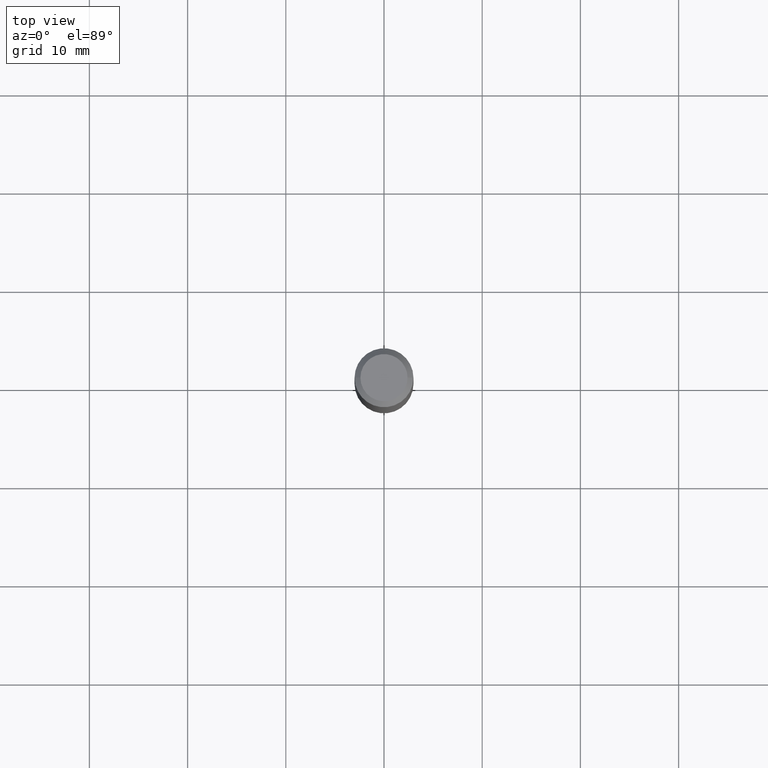
[diagram: clean part render]
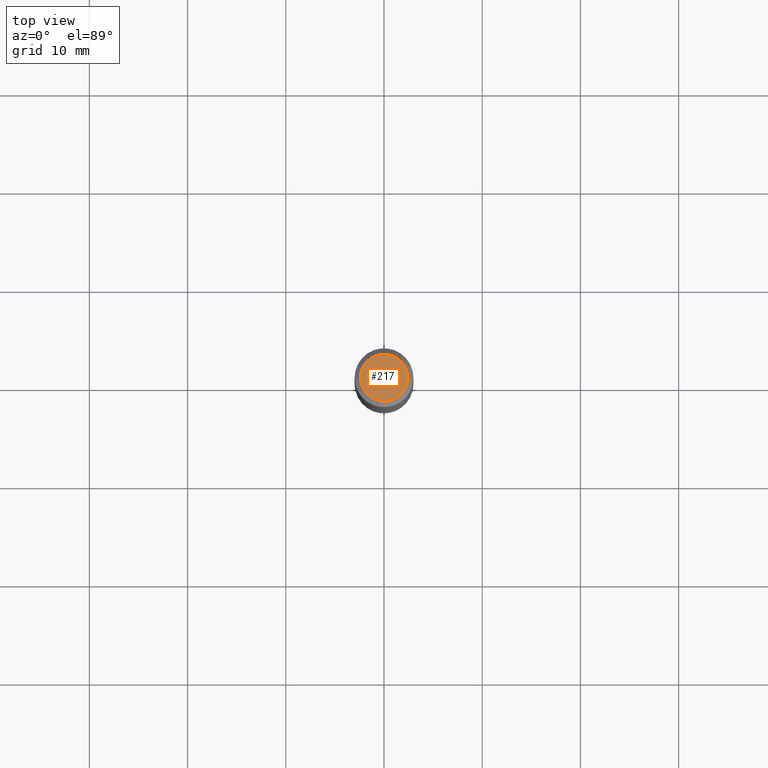
[diagram: same view with one face highlighted and labeled with its STEP entity id]
A machine part, top view. The second image highlights one B-rep face of the part: STEP entity #217.
In plain terms, the highlighted planar face has unit normal (0, -0, -1).
Its self-contained STEP definition (entity closure, byte-faithful):
#52 = CIRCLE ( 'NONE', #451, 0.09447999999999998066 ) ;
#68 = FACE_OUTER_BOUND ( 'NONE', #434, .T. ) ;
#71 = VERTEX_POINT ( 'NONE', #278 ) ;
#92 = EDGE_CURVE ( 'NONE', #71, #93, #122, .T. ) ;
#93 = VERTEX_POINT ( 'NONE', #137 ) ;
#94 = EDGE_CURVE ( 'NONE', #93, #71, #52, .T. ) ;
#107 = DIRECTION ( 'NONE',  ( -1.000000000000000000, 6.982962677686265922E-15, -4.876176775795935793E-29 ) ) ;
#122 = CIRCLE ( 'NONE', #315, 0.09447999999999998066 ) ;
#137 = CARTESIAN_POINT ( 'NONE',  ( 0.09447999999999998066, -7.704367267948738690E-16, -1.928573779296752193E-17 ) ) ;
#217 = ADVANCED_FACE ( 'NONE', ( #68 ), #484, .F. ) ;
#242 = DIRECTION ( 'NONE',  ( 2.438088387897960049E-29, -3.491481338843145188E-15, -1.000000000000000000 ) ) ;
#277 = ORIENTED_EDGE ( 'NONE', *, *, #92, .T. ) ;
#278 = CARTESIAN_POINT ( 'NONE',  ( -0.09447999999999998066, 7.009847083995354710E-16, -1.928573779297727792E-17 ) ) ;
#281 = DIRECTION ( 'NONE',  ( 1.000000000000000000, -6.982962677686267499E-15, 4.875432709231658792E-29 ) ) ;
#290 = CARTESIAN_POINT ( 'NONE',  ( 4.716267017698007905E-46, -6.733579360998555036E-32, -1.928573779297252010E-17 ) ) ;
#315 = AXIS2_PLACEMENT_3D ( 'NONE', #406, #370, #335 ) ;
#335 = DIRECTION ( 'NONE',  ( 1.000000000000000000, -6.982962677686267499E-15, 4.875432709231658792E-29 ) ) ;
#370 = DIRECTION ( 'NONE',  ( -2.445468806185136597E-29, 3.491481338843145583E-15, 1.000000000000000000 ) ) ;
#394 = ORIENTED_EDGE ( 'NONE', *, *, #94, .T. ) ;
#406 = CARTESIAN_POINT ( 'NONE',  ( 4.716267017698007905E-46, -6.733579360998555036E-32, -1.928573779297252010E-17 ) ) ;
#415 = DIRECTION ( 'NONE',  ( -2.445468806185136597E-29, 3.491481338843145583E-15, 1.000000000000000000 ) ) ;
#434 = EDGE_LOOP ( 'NONE', ( #277, #394 ) ) ;
#438 = CARTESIAN_POINT ( 'NONE',  ( 2.358133508849003952E-46, -3.366789680499277518E-32, -9.642868896486260050E-18 ) ) ;
#451 = AXIS2_PLACEMENT_3D ( 'NONE', #290, #415, #281 ) ;
#479 = AXIS2_PLACEMENT_3D ( 'NONE', #438, #242, #107 ) ;
#484 = PLANE ( 'NONE',  #479 ) ;